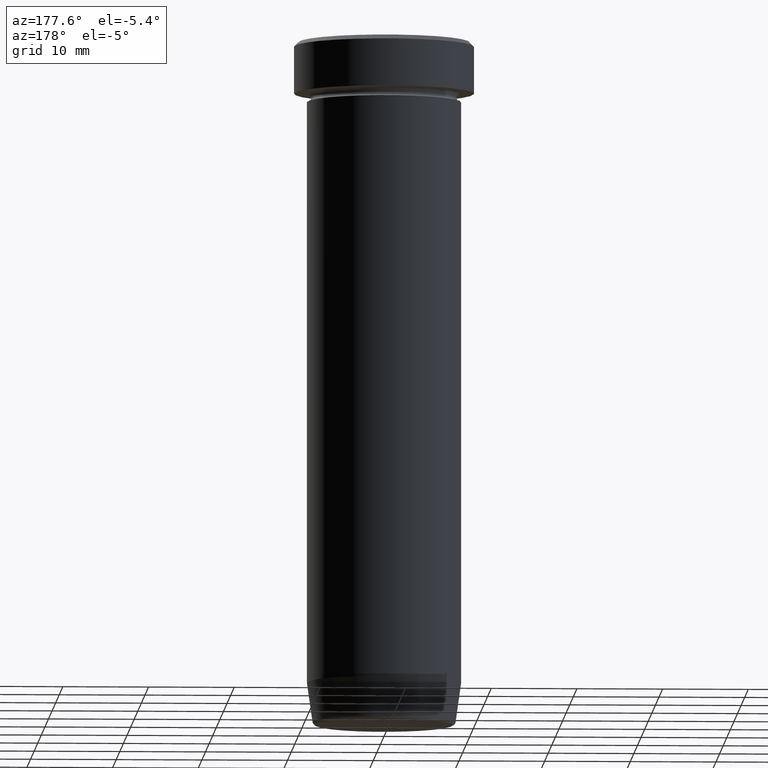
[diagram: clean part render]
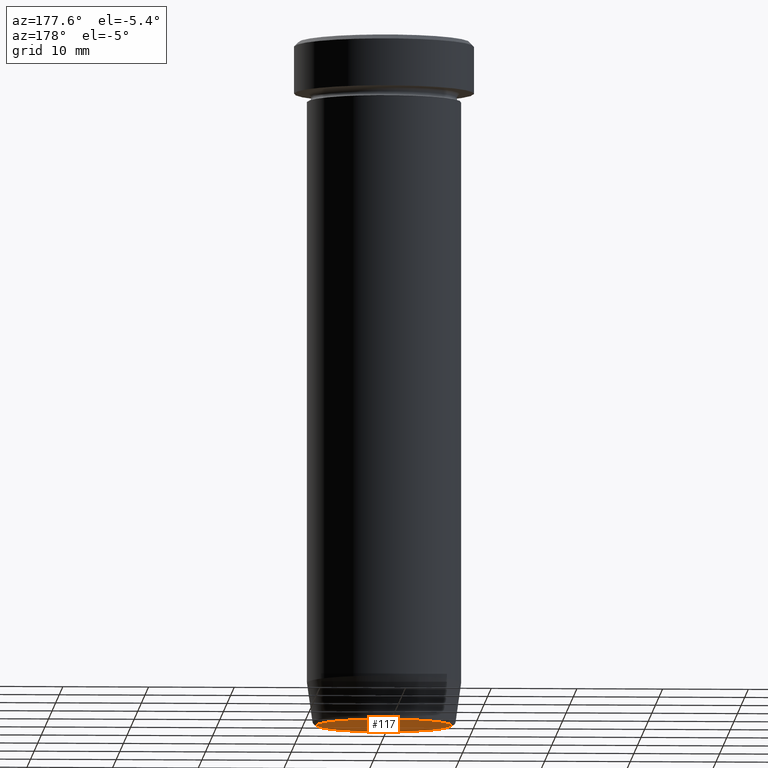
[diagram: same view with one face highlighted and labeled with its STEP entity id]
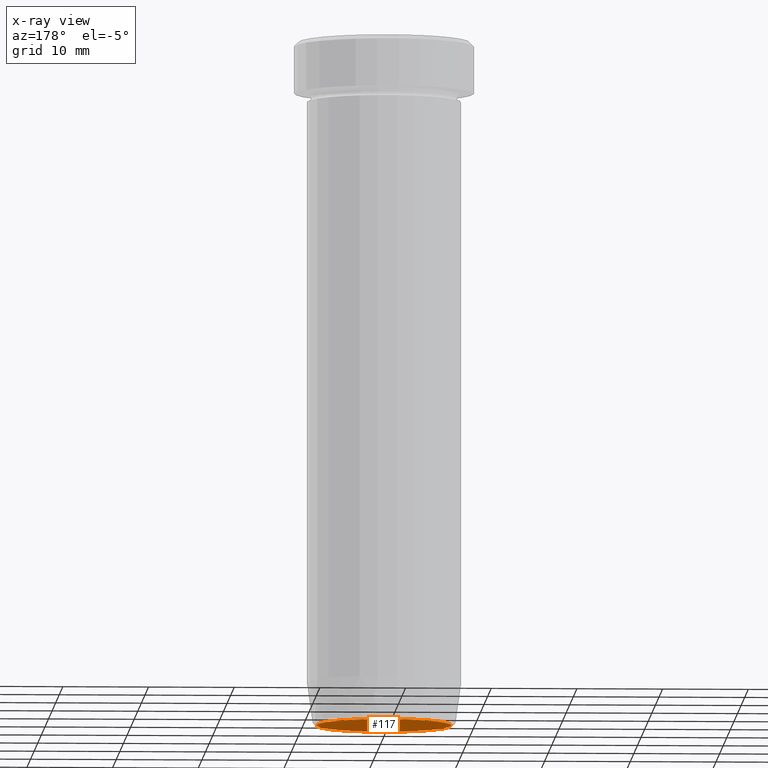
[diagram: x-ray of the same camera — body ghosted, the highlighted face saturated]
A machine part, auxiliary view. The second image highlights one B-rep face of the part: STEP entity #117.
The next image is the same camera in x-ray: the body ghosted, the highlighted face saturated — about 0% of this face is hidden behind the body in this view.
In plain terms, the highlighted planar face has unit normal (0, -0, 1).
Its self-contained STEP definition (entity closure, byte-faithful):
#5 = CARTESIAN_POINT ( 'NONE',  ( 0.000000000000000000, 0.000000000000000000, -80.00000000000001421 ) ) ;
#7 = CARTESIAN_POINT ( 'NONE',  ( 7.862652457579923038, 0.000000000000000000, -80.00000000000001421 ) ) ;
#70 = PLANE ( 'NONE',  #105 ) ;
#71 = DIRECTION ( 'NONE',  ( 1.000000000000000000, 0.000000000000000000, 0.000000000000000000 ) ) ;
#77 = DIRECTION ( 'NONE',  ( 0.000000000000000000, 0.000000000000000000, -1.000000000000000000 ) ) ;
#88 = VERTEX_POINT ( 'NONE', #246 ) ;
#105 = AXIS2_PLACEMENT_3D ( 'NONE', #110, #211, #520 ) ;
#110 = CARTESIAN_POINT ( 'NONE',  ( 0.000000000000000000, 3.469446951953614189E-15, -80.00000000000001421 ) ) ;
#116 = AXIS2_PLACEMENT_3D ( 'NONE', #5, #77, #166 ) ;
#117 = ADVANCED_FACE ( 'NONE', ( #341 ), #70, .F. ) ;
#137 = ORIENTED_EDGE ( 'NONE', *, *, #445, .T. ) ;
#160 = EDGE_LOOP ( 'NONE', ( #349, #137 ) ) ;
#163 = DIRECTION ( 'NONE',  ( 0.000000000000000000, 0.000000000000000000, -1.000000000000000000 ) ) ;
#166 = DIRECTION ( 'NONE',  ( 1.000000000000000000, 0.000000000000000000, 0.000000000000000000 ) ) ;
#197 = AXIS2_PLACEMENT_3D ( 'NONE', #475, #163, #71 ) ;
#211 = DIRECTION ( 'NONE',  ( 0.000000000000000000, -0.000000000000000000, 1.000000000000000000 ) ) ;
#225 = CIRCLE ( 'NONE', #116, 7.862652457579923038 ) ;
#230 = VERTEX_POINT ( 'NONE', #7 ) ;
#234 = CIRCLE ( 'NONE', #197, 7.862652457579923038 ) ;
#246 = CARTESIAN_POINT ( 'NONE',  ( -7.862652457579923038, 9.932154320153869973E-16, -80.00000000000001421 ) ) ;
#341 = FACE_OUTER_BOUND ( 'NONE', #160, .T. ) ;
#349 = ORIENTED_EDGE ( 'NONE', *, *, #529, .T. ) ;
#445 = EDGE_CURVE ( 'NONE', #88, #230, #225, .T. ) ;
#475 = CARTESIAN_POINT ( 'NONE',  ( 0.000000000000000000, 0.000000000000000000, -80.00000000000001421 ) ) ;
#520 = DIRECTION ( 'NONE',  ( 1.000000000000000000, 0.000000000000000000, 0.000000000000000000 ) ) ;
#529 = EDGE_CURVE ( 'NONE', #230, #88, #234, .T. ) ;